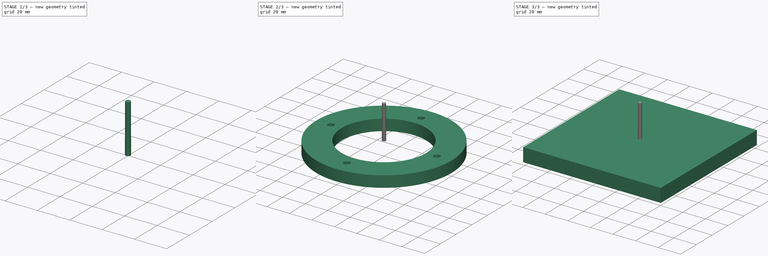
[diagram: build sequence overview — one tinted view per stage of 3, left to right]
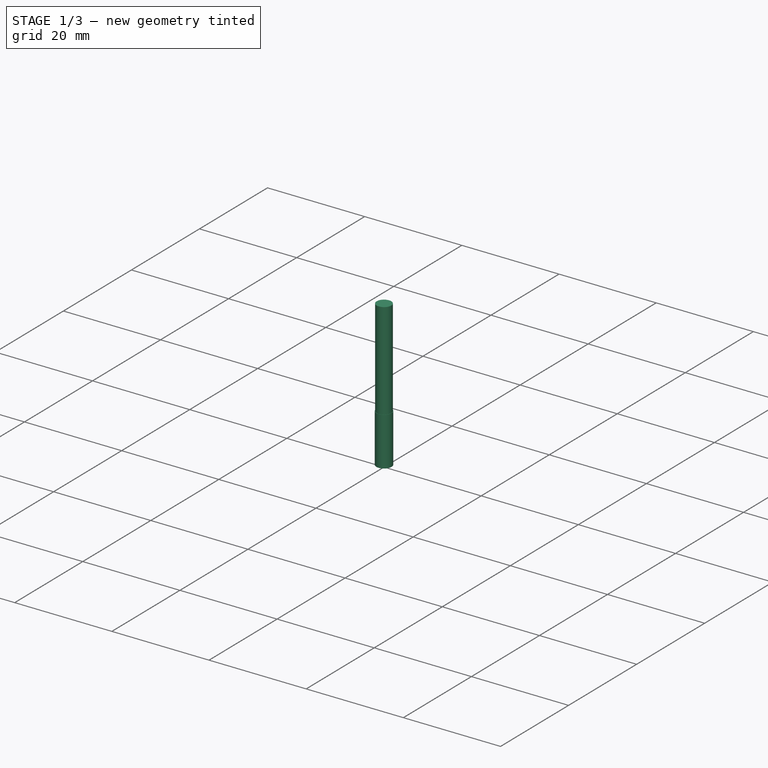
[diagram: stage 1 of 3 — iso view after this stage's code; geometry added in this stage tinted green]
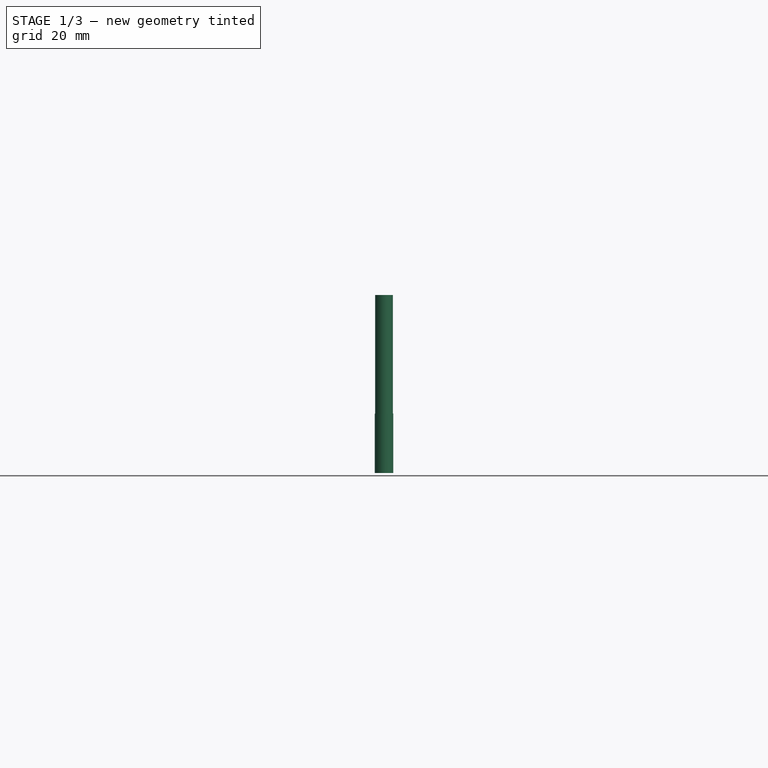
[diagram: stage 1 of 3 — front view after this stage's code; geometry added in this stage tinted green]
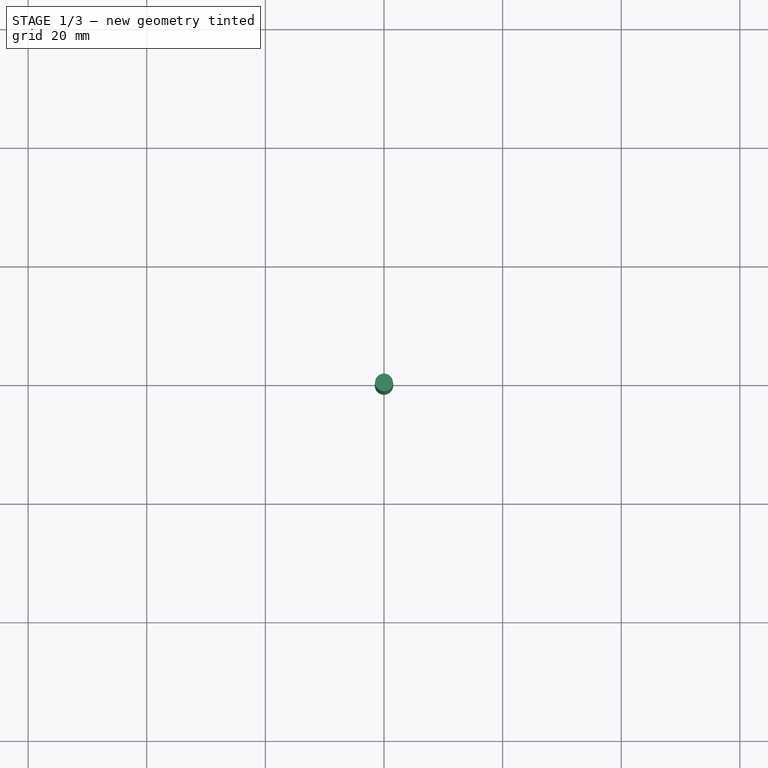
[diagram: stage 1 of 3 — top view after this stage's code; geometry added in this stage tinted green]
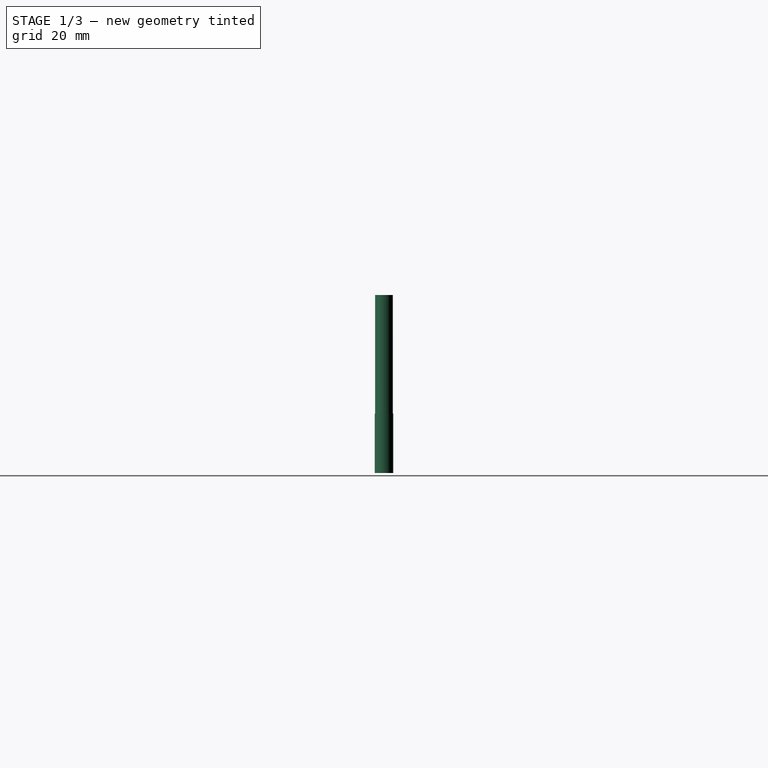
[diagram: stage 1 of 3 — right view after this stage's code; geometry added in this stage tinted green]
FCSTD DOCUMENT  (FreeCAD 0.20R29410 (Git))
Label: bucket_cover
License: All rights reserved
LicenseURL: http://en.wikipedia.org/wiki/All_rights_reserved
objects: Part::FeaturePython×4, Path::FeaturePython×4, App::DocumentObjectGroup×3, Sketcher::SketchObject×2, PartDesign::Body×2, App::FeaturePython×2, PartDesign::Pad×1, PartDesign::Revolution×1
note: 14 computed .brp shape members not serialized (recipe doc carries the construction recipe); baked Part::Feature solids carry a one-line shape summary decoded from their .brp

FEATURE [Part::FeaturePython] ToolBit  label="3_endmill004"  # Path/CAM toolbit (typed FeaturePython)
  BitPropertyNames = Chipload | CuttingEdgeHeight | Diameter | Flutes | Length | Material | ShankDiameter | SpindleDirection
  BitShape = <path>
  Chipload = 0
  CuttingEdgeHeight = 10
  Diameter = 3
  Flutes = 0
  Length = 30
  Material = 0
  ShankDiameter = 3
  ShapeName = endmill
  SpindleDirection = 0
FEATURE [Path::FeaturePython] __endmill002  label="3_endmill003"  # Path/CAM operation (typed FeaturePython)
  HorizFeed = 8.33333
  HorizRapid = 0
  SpindleDir = 0
  SpindleSpeed = 8000
  Tool = -> ToolBit
  ToolNumber = 2
  VertFeed = 1.66667
  VertRapid = 0
  expr: HorizRapid = SetupSheet.HorizRapid
  expr: VertRapid = SetupSheet.VertRapid
FEATURE [App::DocumentObjectGroup] Tools
  Group = -> [__endmill002]
FEATURE [Path::FeaturePython] Pocket_Shape  # Path/CAM operation (typed FeaturePython)
  Active = true
  AreaParams:
    Tolerance = 1e-07
    FitArcs = True
    Simplify = False
    CleanDistance = 0.0
    Accuracy = 0.01
    Unit = 1.0
    MinArcPoints = 4
    MaxArcPoints = 100
    ClipperScale = 10000000.0
    Fill = 0
    Coplanar = 0
    Reorient = True
    Outline = False
    Explode = False
    OpenMode = 0
    Deflection = 0.01
    SubjectFill = 0
    ClipFill = 0
    Offset = 0.0
    ExtraPass = 0
    Stepover = 0.0
    LastStepover = 0.0
    JoinType = 0
    EndType = 0
    MiterLimit = 2.0
    RoundPrecision = 0.0
    PocketMode = 1
    ToolRadius = 1.5
    PocketExtraOffset = 0.0
    PocketStepover = 3.0
    PocketLastStepover = 0.0
    FromCenter = True
    Angle = 45.0
    AngleShift = 0.0
    Shift = 0.0
    Thicken = False
    SectionCount = -1
    Stepdown = 1.0
    SectionOffset = 0.0
    SectionTolerance = 1e-06
    SectionMode = 2
    Project = False
  Base = -> [Clone]
  ClearanceHeight = 6
  CoolantMode = 0
  CutMode = 1
  CycleTime = 00:02:10
  ExtensionCorners = true
  ExtensionLengthDefault = 1.5
  ExtraOffset = 0
  FinalDepth = -10
  FinishDepth = 0
  KeepToolDown = false
  MinTravel = false
  OffsetPattern = 0
  OpFinalDepth = -10
  OpStartDepth = 1
  OpStockZMax = 1
  OpStockZMin = -11
  OpToolDiameter = 3
  PathParams = {'orientation': 0, 'feedrate': 8.333333333333334, 'feedrate_v': 1.6666666666666667, 'verbose': True, 'resume_height': 4.0, 'retraction': 6.0, 'return_end': True, 'preamble': False, 'start': Vector (-0.8636079366483008, 46.10342027594713, 6.0)}
  PocketLastStepOver = 0
  SafeHeight = 4
  SplitArcs = false
  StartAt = 0
  StartDepth = 1
  StartPoint = (0,0,0)
  StepDown = 1
  StepOver = 100
  ToolController = -> __endmill002
  UseOutline = false
  UseStartPoint = false
  ZigZagAngle = 45
  expr: ClearanceHeight = OpStockZMax + SetupSheet.ClearanceHeightOffset
  expr: ExtensionLengthDefault = OpToolDiameter / 2
  expr: FinalDepth = OpFinalDepth
  expr: SafeHeight = OpStockZMax + SetupSheet.SafeHeightOffset
  expr: StartDepth = OpStartDepth
  expr: StepDown = 1
FEATURE [Path::FeaturePython] Profile  # Path/CAM operation (typed FeaturePython)
  Active = true
  AreaParams:
    Tolerance = 1e-07
    FitArcs = True
    Simplify = False
    CleanDistance = 0.0
    Accuracy = 0.01
    Unit = 1.0
    MinArcPoints = 4
    MaxArcPoints = 100
    ClipperScale = 10000000.0
    Fill = 0
    Coplanar = 0
    Reorient = True
    Outline = False
    Explode = False
    OpenMode = 0
    Deflection = 0.01
    SubjectFill = 0
    ClipFill = 0
    Offset = -1.5
    ExtraPass = 0
    Stepover = 0.0
    LastStepover = 0.0
    JoinType = 0
    EndType = 0
    MiterLimit = 2.0
    RoundPrecision = 0.0
    PocketMode = 0
    ToolRadius = 1.0
    PocketExtraOffset = 0.0
    PocketStepover = 0.0
    PocketLastStepover = 0.0
    FromCenter = False
    Angle = 45.0
    AngleShift = 0.0
    Shift = 0.0
    Thicken = False
    SectionCount = -1
    Stepdown = 1.0
    SectionOffset = 0.0
    SectionTolerance = 1e-06
    SectionMode = 2
    Project = False
  Base = -> [Clone]
  ClearanceHeight = 6
  CoolantMode = 0
  CycleTime = 00:05:25
  Direction = 0
  FinalDepth = -10
  HandleMultipleFeatures = 0
  JoinType = 0
  MiterLimit = 0.1
  OffsetExtra = 0
  OpFinalDepth = -10
  OpStartDepth = 1
  OpStockZMax = 1
  OpStockZMin = -11
  OpToolDiameter = 3
  PathParams = {'orientation': 1, 'feedrate': 8.333333333333334, 'feedrate_v': 1.6666666666666667, 'verbose': True, 'resume_height': 4.0, 'retraction': 6.0, 'return_end': True, 'preamble': False}
  SafeHeight = 4
  Side = 1
  SplitArcs = false
  StartDepth = 1
  StartPoint = (0,0,0)
  StepDown = 1
  ToolController = -> __endmill002
  UseComp = true
  UseStartPoint = false
  processCircles = false
  processHoles = false
  processPerimeter = true
  expr: ClearanceHeight = OpStockZMax + SetupSheet.ClearanceHeightOffset
  expr: FinalDepth = OpFinalDepth
  expr: SafeHeight = OpStockZMax + SetupSheet.SafeHeightOffset
  expr: StartDepth = OpStartDepth
  expr: StepDown = 1
FEATURE [App::DocumentObjectGroup] Operations
  Group = -> [Pocket_Shape,Profile]
FEATURE [Path::FeaturePython] Job  # Path/CAM operation (typed FeaturePython)
  CycleTime = 00:07:35
  Fixtures = G54
  GeometryTolerance = 0.01
  JobType = 0
  LastPostProcessDate = 2022-12-15 10:29:54.076926
  LastPostProcessOutput = <userpath>/projects/sandbox/freecad/cnc_ly/bucket_cover.nc
  Model = -> Model
  Operations = -> Operations
  OrderOutputBy = 0
  PostProcessor = 8
  SetupSheet = -> SetupSheet
  SplitOutput = false
  Stock = -> Stock
  Tools = -> Tools
FEATURE [App::FeaturePython] PropertyBag  label="Attributes"  # WARN: FeaturePython — macro-defined, semantics opaque (R4)
  Chipload = 0
  CustomPropertyGroups = Attributes | Shape
  CuttingEdgeHeight = 10
  Diameter = 3.125
  Flutes = 0
  Length = 30
  Material = 0
  ShankDiameter = 3
  SpindleDirection = 0
FEATURE [Sketcher::SketchObject] Sketch001
  FullyConstrained = true
  MapMode = 5
  Placement = pos=(0,0,0) rot=(1,0,0;1.5708rad)
  Support = -> [XZ_Plane001]
  expr: Constraints[10] = <<Attributes>>.Length
  expr: Constraints[16] = <<Attributes>>.ShankDiameter
  expr: Constraints[18] = <<Attributes>>.CuttingEdgeHeight
  expr: Constraints[9] = <<Attributes>>.Diameter
  sketch-geometry (8):
    g0: LineSegment StartX=0 StartY=30 StartZ=0 EndX=0 EndY=0 EndZ=0
    g1: LineSegment StartX=0 StartY=0 StartZ=0 EndX=1.5625 EndY=0 EndZ=0
    g2: LineSegment StartX=1.5625 StartY=0 StartZ=0 EndX=1.5625 EndY=10 EndZ=0
    g3: LineSegment StartX=1.5 StartY=30 StartZ=0 EndX=0 EndY=30 EndZ=0
    g4: LineSegment StartX=1.5625 StartY=0 StartZ=0 EndX=-1.5625 EndY=0 EndZ=0
    g5: LineSegment StartX=1.5 StartY=9.99 StartZ=0 EndX=1.5625 EndY=10 EndZ=0
    g6: LineSegment StartX=1.5 StartY=30 StartZ=0 EndX=1.5 EndY=9.99 EndZ=0
    g7: LineSegment StartX=-1.5 StartY=30 StartZ=0 EndX=1.5 EndY=30 EndZ=0
  constraints (21):
    c: Vertical(g0)
    c: Coincident(g0,g1)
    c: Horizontal(g1)
    c: Coincident(g1,g2)
    c: Vertical(g2)
    c: Horizontal(g3)
    c: Coincident(g0,g3)
    c: Coincident(g4,g1)
    c: Symmetric(g1,g4,g0)
    c: DistanceX(g4,g4) = 3.125
    c: DistanceY(g2,g3) = 30
    c: Coincident(g2,g5)
    c: Vertical(g6)
    c: Coincident(g3,g6)
    c: Symmetric(g7,g7,g0)
    c: Coincident(g7,g3)
    c: DistanceX(g7,g7) = 3
    c: Coincident(g5,g6)
    c: DistanceY(g2) = 10
    c: Coincident(g0,g-1)
    c: DistanceY(g5,g2) = 0.01
FEATURE [PartDesign::Revolution] Revolution
  AllowMultiFace = false
  Angle = 360
  Axis = (0,-2e-16,1)
  Base = (0,0,0)
  Placement = pos=(0,0,0) rot=(1,0,0;1.5708rad)
  Profile = -> Sketch001
  ReferenceAxis = -> Sketch001 [V_Axis]
  Reversed = true
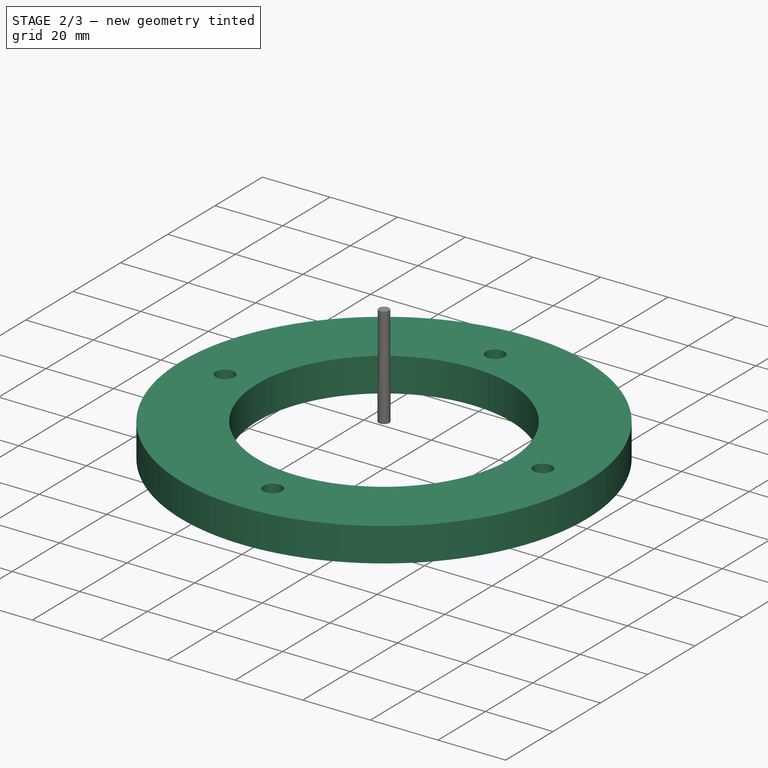
[diagram: stage 2 of 3 — iso view after this stage's code; geometry added in this stage tinted green]
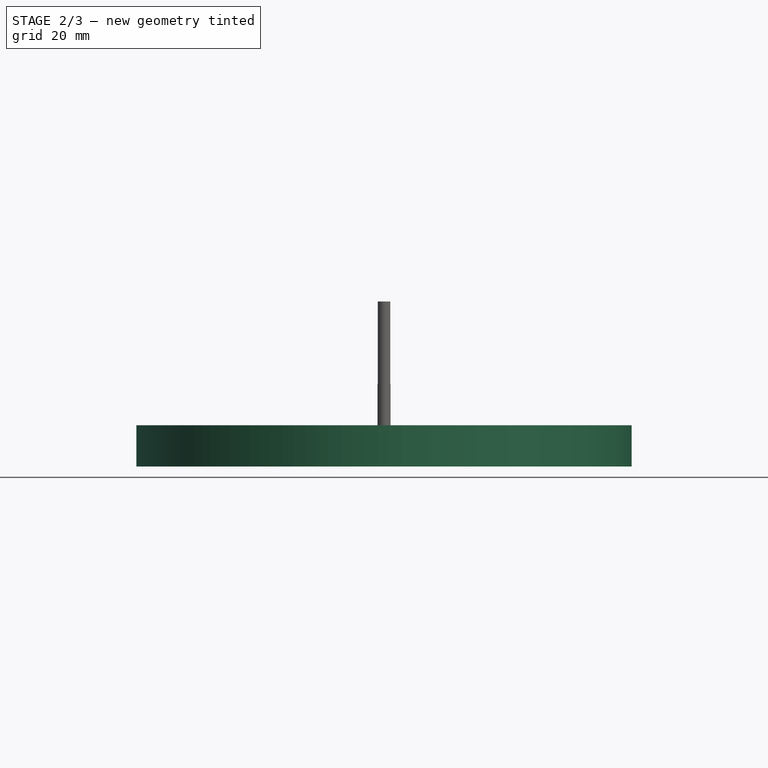
[diagram: stage 2 of 3 — front view after this stage's code; geometry added in this stage tinted green]
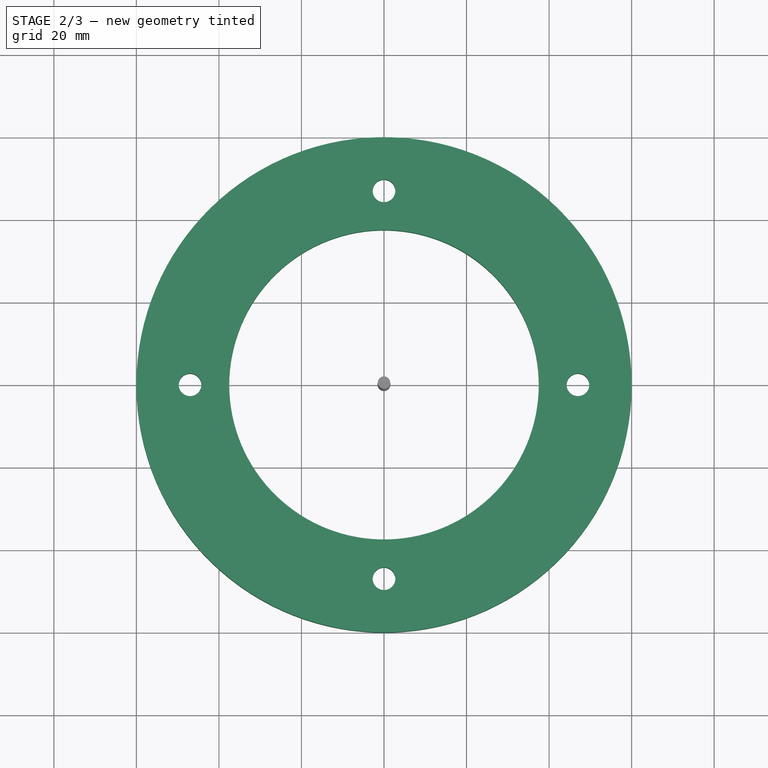
[diagram: stage 2 of 3 — top view after this stage's code; geometry added in this stage tinted green]
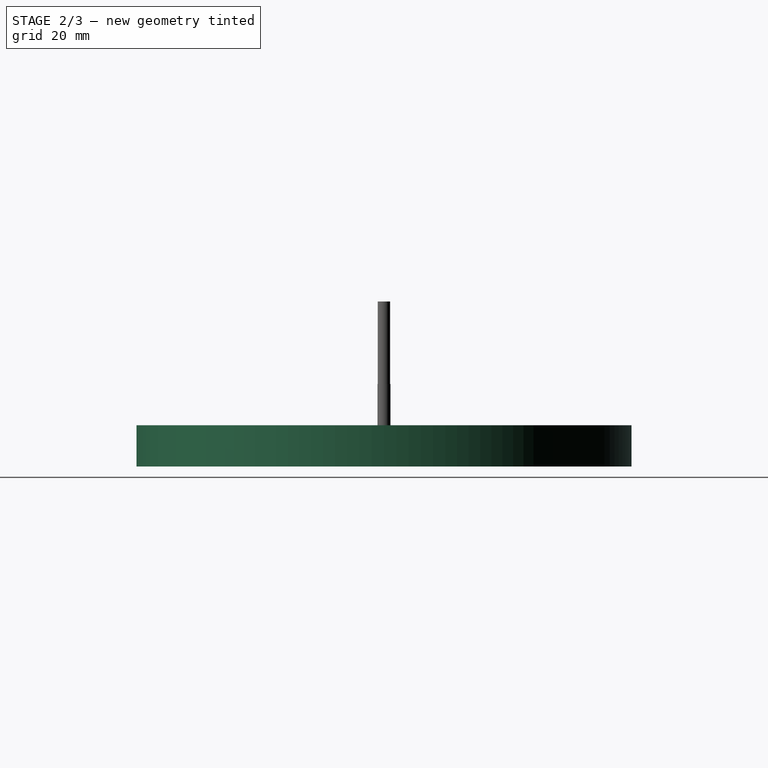
[diagram: stage 2 of 3 — right view after this stage's code; geometry added in this stage tinted green]
FEATURE [Sketcher::SketchObject] Sketch
  FullyConstrained = true
  MapMode = 5
  Support = -> [XY_Plane]
  sketch-geometry (6):
    g0: Circle CenterX=0 CenterY=0 CenterZ=0 NormalX=0 NormalY=0 NormalZ=1 AngleXU=0 Radius=37.5
    g1: Circle CenterX=-47 CenterY=0 CenterZ=0 NormalX=0 NormalY=0 NormalZ=1 AngleXU=0 Radius=2.75
    g2: Circle CenterX=0 CenterY=47 CenterZ=0 NormalX=0 NormalY=0 NormalZ=1 AngleXU=0 Radius=2.75
    g3: Circle CenterX=47 CenterY=0 CenterZ=0 NormalX=0 NormalY=0 NormalZ=1 AngleXU=0 Radius=2.75
    g4: Circle CenterX=0 CenterY=-47 CenterZ=0 NormalX=0 NormalY=0 NormalZ=1 AngleXU=0 Radius=2.75
    g5: Circle CenterX=0 CenterY=0 CenterZ=0 NormalX=0 NormalY=0 NormalZ=1 AngleXU=0 Radius=60
  constraints (14):
    c: Coincident(g0,g-1)
    c: PointOnObject(g1,g-1)
    c: PointOnObject(g2,g-2)
    c: Equal(g1,g2)
    c: Equal(g2,g3)
    c: Equal(g3,g4)
    c: Diameter(g3) = 5.5
    c: Symmetric(g1,g3,g-2)
    c: Symmetric(g4,g2,g-1)
    c: DistanceX(g1,g3) = 94
    c: DistanceY(g4,g2) = 94
    c: Diameter(g0) = 75
    c: Coincident(g5,g0)
    c: Diameter(g5) = 120
FEATURE [PartDesign::Pad] Pad
  Direction = (0,0,1)
  Length = 10
  Length2 = 10
  Profile = -> Sketch
  ReferenceAxis = -> Sketch [N_Axis]
  Reversed = true
  Type = 0
FEATURE [PartDesign::Body] Body
  Group = -> [Sketch,Pad]
  Origin = -> Origin
  Tip = -> Pad
FEATURE [App::FeaturePython] SetupSheet  # Path/CAM operation (typed FeaturePython)
  ClearanceHeightExpression = OpStockZMax+SetupSheet.ClearanceHeightOffset
  ClearanceHeightOffset = 5
  CoolantMode = 0
  CoolantModes = None | Flood | Mist
  FinalDepthExpression = OpFinalDepth
  HorizRapid = 0
  SafeHeightExpression = OpStockZMax+SetupSheet.SafeHeightOffset
  SafeHeightOffset = 3
  StartDepthExpression = OpStartDepth
  StepDownExpression = OpToolDiameter
  VertRapid = 0
FEATURE [Part::FeaturePython] Clone  label="Model-Body"  # Draft clone (typed FeaturePython)
  AttacherType = Attacher::AttachEngine3D
  Fuse = false
  Objects = -> [Body]
  PathResource = Model
  Scale = (1,1,1)
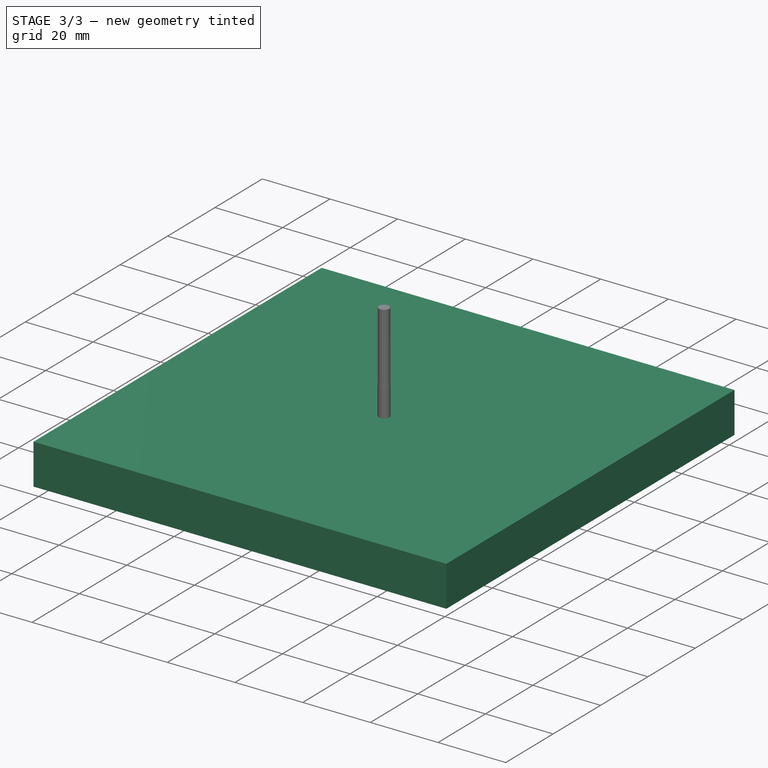
[diagram: stage 3 of 3 — iso view after this stage's code; geometry added in this stage tinted green]
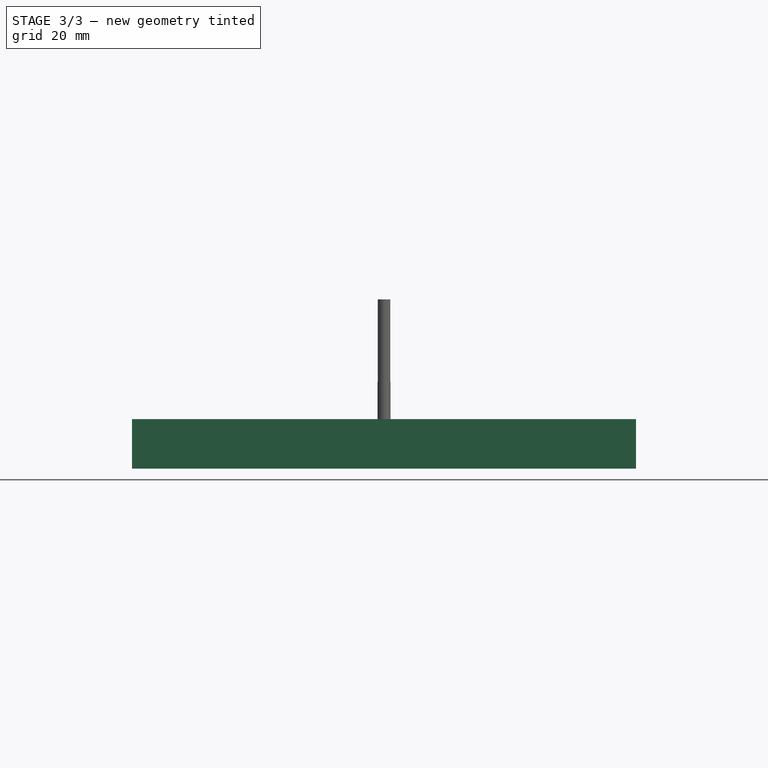
[diagram: stage 3 of 3 — front view after this stage's code; geometry added in this stage tinted green]
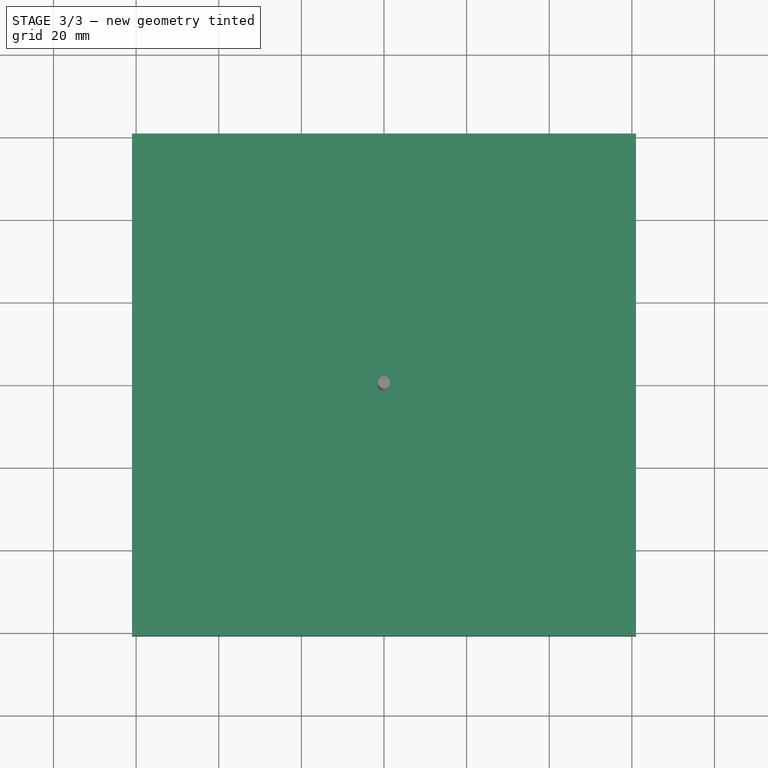
[diagram: stage 3 of 3 — top view after this stage's code; geometry added in this stage tinted green]
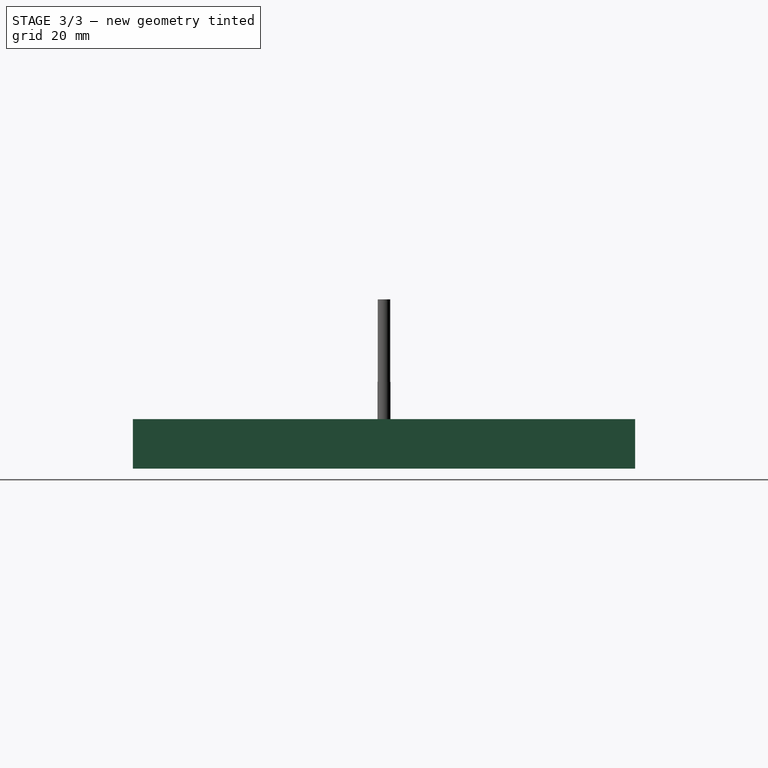
[diagram: stage 3 of 3 — right view after this stage's code; geometry added in this stage tinted green]
FEATURE [App::DocumentObjectGroup] Model
  Group = -> [Clone]
FEATURE [Part::FeaturePython] Stock  # WARN: FeaturePython — macro-defined, semantics opaque (R4)
  Base = -> Model
  ExtXneg = 1
  ExtXpos = 1
  ExtYneg = 1
  ExtYpos = 1
  ExtZneg = 1
  ExtZpos = 1
  Placement = pos=(-60,-59.7951,-10) rot=(0,0,1;0rad)
  StockType = FromBase
FEATURE [PartDesign::Body] Body001  label="Endmill"
  Group = -> [Sketch001,Revolution,PropertyBag]
  Origin = -> Origin001
  Tip = -> Revolution
FEATURE [Part::FeaturePython] ToolBit001  label="3_endmill002"  # Path/CAM toolbit (typed FeaturePython)
  BitBody = -> Body001
  BitPropertyNames = Chipload | CuttingEdgeHeight | Diameter | Flutes | Length | Material | ShankDiameter | SpindleDirection
  BitShape = <path>
  Chipload = 0
  CuttingEdgeHeight = 10
  Diameter = 3.125
  File = <userpath>/freecad_toolbit/Bit/3_enmill.fctb
  Flutes = 0
  Length = 30
  Material = 0
  ShankDiameter = 3
  ShapeName = endmill
  SpindleDirection = 0
note: 2 file-system paths scrubbed to <path> (originals preserved in the JSON sidecar)
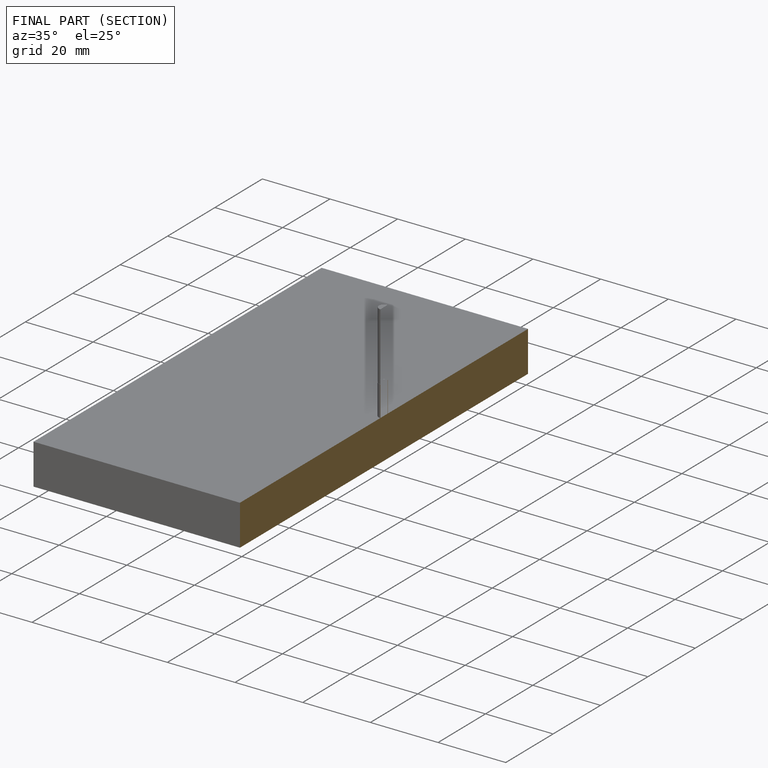
[diagram: finished part — half-section view (interior)]
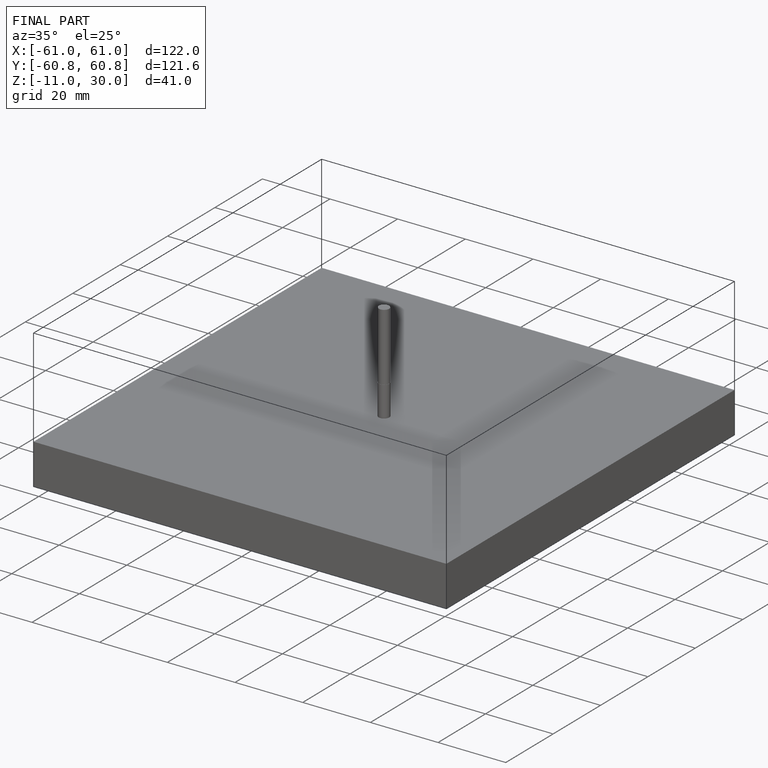
[diagram: finished part — iso view with bounding-box wireframe]
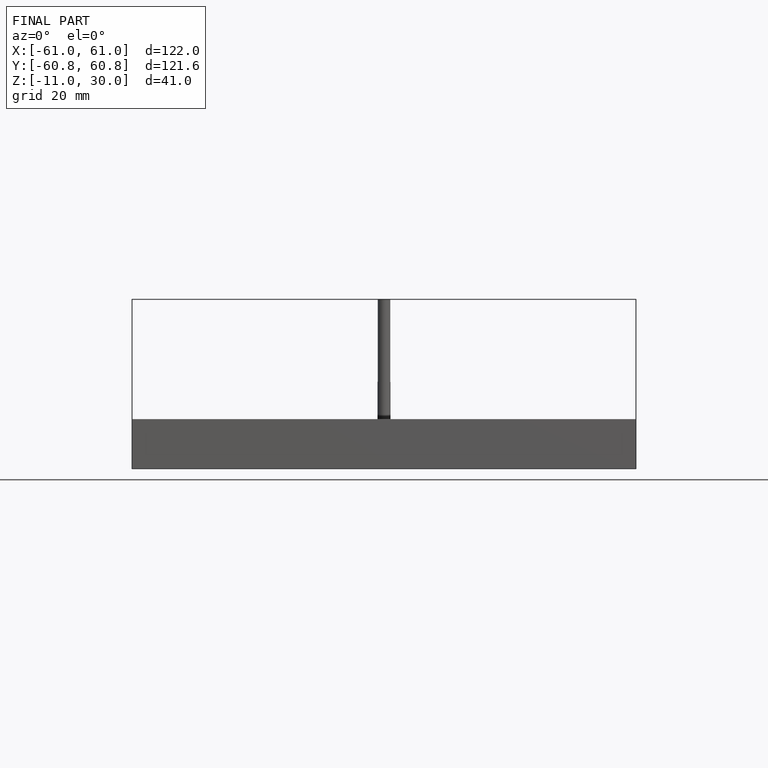
[diagram: finished part — front view with bounding-box wireframe]
